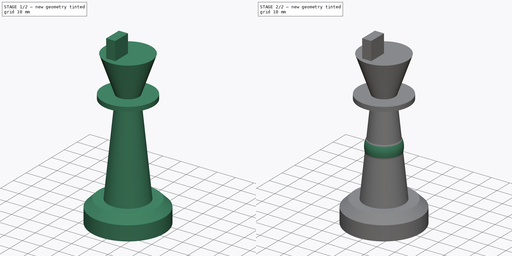
[diagram: build sequence overview — one tinted view per stage of 2, left to right]
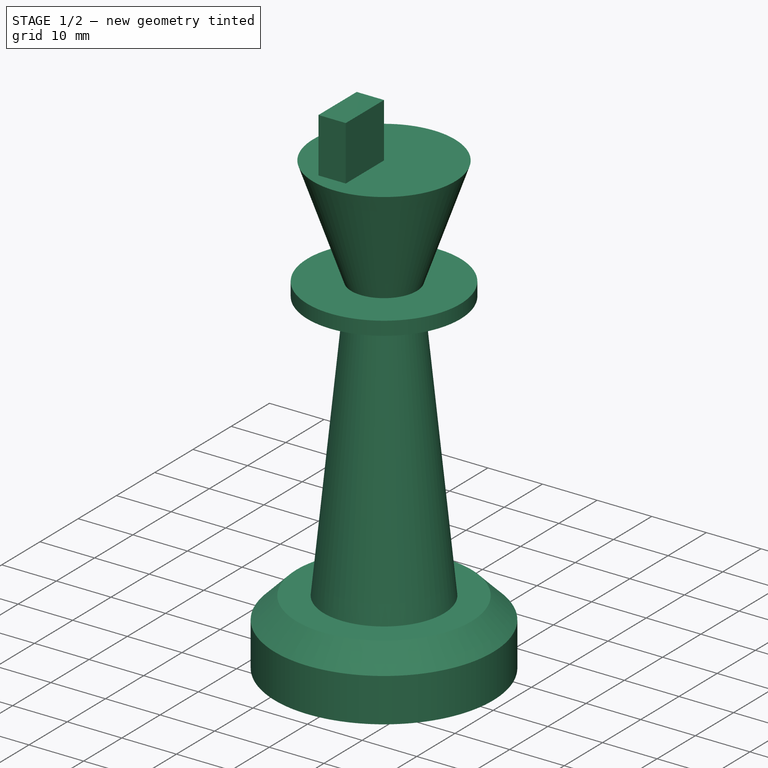
[diagram: stage 1 of 2 — iso view after this stage's code; geometry added in this stage tinted green]
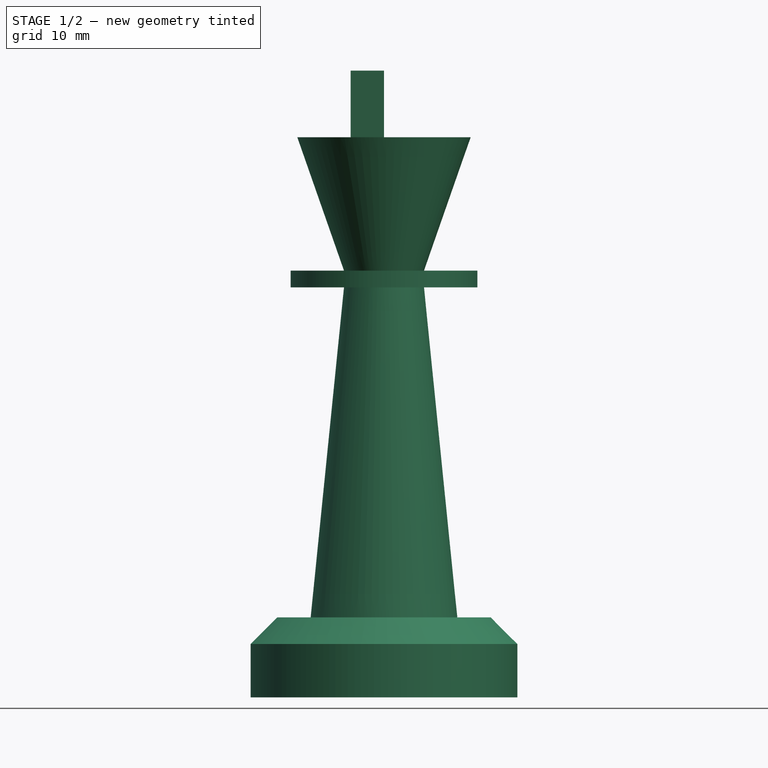
[diagram: stage 1 of 2 — front view after this stage's code; geometry added in this stage tinted green]
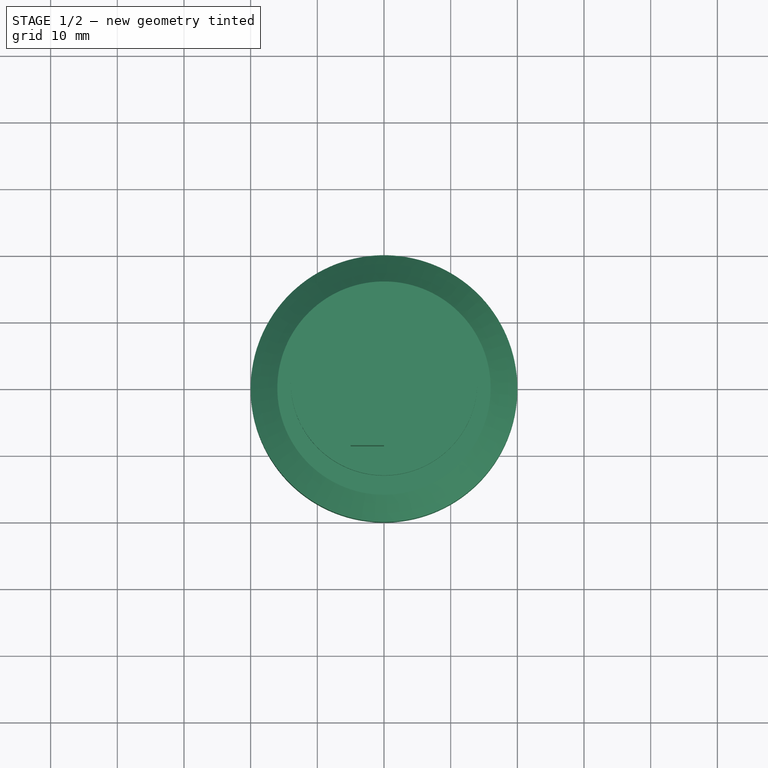
[diagram: stage 1 of 2 — top view after this stage's code; geometry added in this stage tinted green]
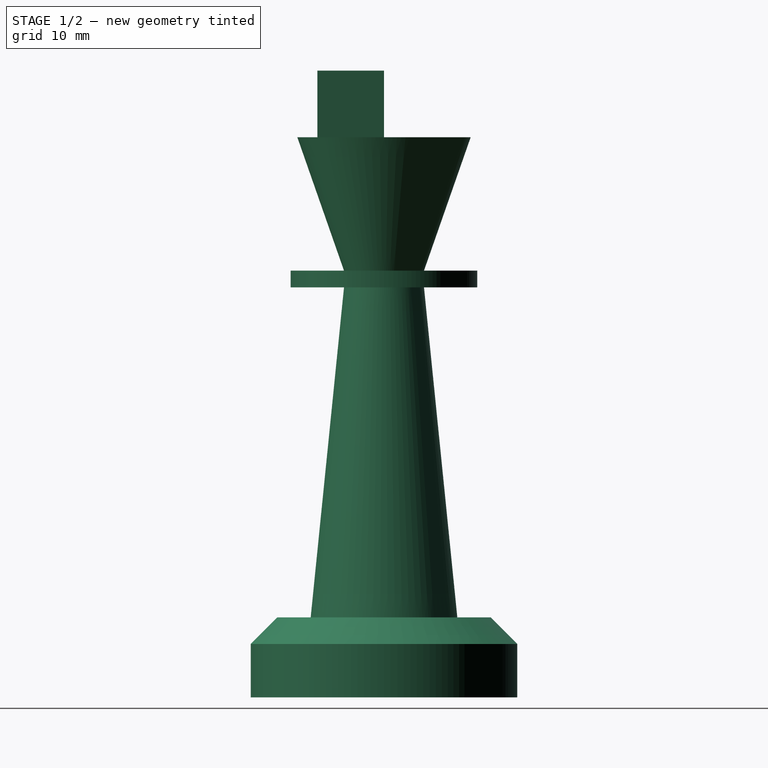
[diagram: stage 1 of 2 — right view after this stage's code; geometry added in this stage tinted green]
FCSTD DOCUMENT  (FreeCAD 0.21R33668 +26 (Git))
Label: pawn
License: All rights reserved
LicenseURL: http://en.wikipedia.org/wiki/All_rights_reserved
objects: Sketcher::SketchObject×10, PartDesign::Revolution×2, PartDesign::Body×2, Part::FeaturePython×1, App::Part×1, App::DocumentObjectGroup×1, PartDesign::Pad×1
note: 19 computed .brp shape members not serialized (recipe doc carries the construction recipe); baked Part::Feature solids carry a one-line shape summary decoded from their .brp

FEATURE [PartDesign::Body] Body
  Group = -> [Sketch,Revolution]
  Origin = -> Origin
  Tip = -> Revolution
FEATURE [App::Part] Part
  Origin = -> Origin001
FEATURE [Sketcher::SketchObject] Sketch002
  FullyConstrained = false
  MapMode = 3
  Placement = pos=(0,0,0) rot=(1,0,0;1.5708rad)
  Support = -> [Part]
  sketch-geometry (10):
    g0: LineSegment StartX=0 StartY=0 StartZ=0 EndX=-15 EndY=0 EndZ=0
    g1: LineSegment StartX=-15 StartY=0 StartZ=0 EndX=-15 EndY=3 EndZ=0
    g2: LineSegment StartX=-15 StartY=3 StartZ=0 EndX=0 EndY=3 EndZ=0
    g3: LineSegment StartX=0 StartY=3 StartZ=0 EndX=0 EndY=0 EndZ=0
    g4: LineSegment StartX=-15 StartY=3 StartZ=0 EndX=0.045315 EndY=3 EndZ=0
    g5: LineSegment StartX=0.045315 StartY=3 StartZ=0 EndX=0.045315 EndY=6.13043 EndZ=0
    g6: LineSegment StartX=0.045315 StartY=6.13043 StartZ=0 EndX=-15 EndY=6.13043 EndZ=0
    g7: LineSegment StartX=-15 StartY=6.13043 StartZ=0 EndX=-15 EndY=3 EndZ=0
    g8: LineSegment StartX=-15 StartY=3 StartZ=0 EndX=-12.7225 EndY=6.13043 EndZ=0
    g9: GeomPoint X=-12.7225 Y=6.13043 Z=0
  constraints (22):
    c: Coincident(g0,g1)
    c: Coincident(g1,g2)
    c: Coincident(g2,g3)
    c: Coincident(g3,g0)
    c: Horizontal(g0)
    c: Horizontal(g2)
    c: Vertical(g1)
    c: Vertical(g3)
    c: Coincident(g0,g-1)
    c: DistanceX(g0,g0) = 15
    c: DistanceY(g1,g1) = 3
    c: Coincident(g4,g5)
    c: Coincident(g5,g6)
    c: Coincident(g6,g7)
    c: Coincident(g7,g4)
    c: Horizontal(g4)
    c: Horizontal(g6)
    c: Vertical(g5)
    c: Vertical(g7)
    c: Coincident(g4,g1)
    c: Coincident(g8,g1)
    c: PointOnObject(g8,g6)
FEATURE [Sketcher::SketchObject] Sketch003
  FullyConstrained = true
  Placement = pos=(0,0,0) rot=(1,0,0;1.5708rad)
  sketch-geometry (11):
    g0: LineSegment StartX=0 StartY=0 StartZ=0 EndX=-20 EndY=0 EndZ=0
    g1: LineSegment StartX=-20 StartY=0 StartZ=0 EndX=-20 EndY=8 EndZ=0
    g2: LineSegment StartX=-20 StartY=8 StartZ=0 EndX=-16 EndY=12 EndZ=0
    g3: LineSegment StartX=-16 StartY=12 StartZ=0 EndX=-11 EndY=12 EndZ=0
    g4: LineSegment StartX=-11 StartY=12 StartZ=0 EndX=-6 EndY=61.5 EndZ=0
    g5: LineSegment StartX=-6 StartY=61.5 StartZ=0 EndX=-14 EndY=61.5 EndZ=0
    g6: LineSegment StartX=-14 StartY=61.5 StartZ=0 EndX=-14 EndY=64 EndZ=0
    g7: LineSegment StartX=-14 StartY=64 StartZ=0 EndX=-6 EndY=64 EndZ=0
    g8: LineSegment StartX=-6 StartY=64 StartZ=0 EndX=-13 EndY=84 EndZ=0
    g9: LineSegment StartX=-13 StartY=84 StartZ=0 EndX=0 EndY=84 EndZ=0
    g10: LineSegment StartX=0 StartY=84 StartZ=0 EndX=0 EndY=0 EndZ=0
  constraints (32):
    c: Coincident(g-1,g0)
    c: PointOnObject(g0,g-1)
    c: Coincident(g0,g1)
    c: Vertical(g1)
    c: Coincident(g1,g2)
    c: Horizontal(g3)
    c: Coincident(g3,g4)
    c: Coincident(g4,g5)
    c: Horizontal(g5)
    c: Coincident(g5,g6)
    c: Vertical(g6)
    c: Coincident(g6,g7)
    c: Horizontal(g7)
    c: Coincident(g7,g8)
    c: Coincident(g8,g9)
    c: PointOnObject(g9,g-2)
    c: Horizontal(g9)
    c: Coincident(g9,g10)
    c: Coincident(g10,g0)
    c: DistanceY(g10,g10) = 84
    c: DistanceX(g0,g0) = 20
    c: DistanceY(g1,g1) = 8
    c: DistanceY(g3) = 12
    c: Coincident(g2,g3)
    c: DistanceX(g2) = -16
    c: DistanceX(g3,g3) = 5
    c: DistanceX(g4) = -6
    c: DistanceX(g5,g5) = 8
    c: Equal(g5,g7)
    c: DistanceY(g6,g6) = 2.5
    c: DistanceY(g8,g8) = 20
    c: DistanceX(g9,g9) = 13
FEATURE [Sketcher::SketchObject] Sketch004
  FullyConstrained = true
  MapMode = 3
  Placement = pos=(0,0,0) rot=(1,0,0;3.14159rad)
  Support = -> [Sketch003]
FEATURE [App::DocumentObjectGroup] Group
  Group = -> [Sketch004]
FEATURE [PartDesign::Revolution] Revolution001
  Angle = 360
  Axis = (0,0,1)
  Base = (0,0,0)
  Placement = pos=(0,0,0) rot=(1,0,0;1.5708rad)
  Profile = -> Sketch003
  ReferenceAxis = -> Sketch003 [V_Axis]
FEATURE [Sketcher::SketchObject] Sketch005
  FullyConstrained = true
  MapMode = 5
  Placement = pos=(0,3.71e-14,84) rot=(0,0,1;3.14159rad)
  Support = -> [Revolution001]
  sketch-geometry (4):
    g0: LineSegment StartX=0 StartY=10 StartZ=0 EndX=5 EndY=10 EndZ=0
    g1: LineSegment StartX=5 StartY=10 StartZ=0 EndX=5 EndY=0 EndZ=0
    g2: LineSegment StartX=5 StartY=0 StartZ=0 EndX=0 EndY=0 EndZ=0
    g3: LineSegment StartX=0 StartY=0 StartZ=0 EndX=0 EndY=10 EndZ=0
  constraints (12):
    c: Coincident(g0,g1)
    c: Coincident(g1,g2)
    c: Coincident(g2,g3)
    c: Coincident(g3,g0)
    c: Horizontal(g0)
    c: Horizontal(g2)
    c: Vertical(g1)
    c: Vertical(g3)
    c: DistanceX(g0,g0) = 5
    c: DistanceY(g3,g3) = 10
    c: DistanceX(g2) = 0
    c: DistanceY(g1) = 0
FEATURE [PartDesign::Pad] Pad
  BaseFeature = -> Revolution001
  Direction = (0,4e-16,1)
  Length = 10
  Length2 = 10
  Placement = pos=(0,0,0) rot=(1,0,0;1.5708rad)
  Profile = -> Sketch005
  ReferenceAxis = -> Sketch005 [N_Axis]
  Type = 0
FEATURE [PartDesign::Body] Body001
  Group = -> [Sketch003,Revolution001,Sketch005,Pad]
  Origin = -> Origin002
  Tip = -> Pad
FEATURE [Sketcher::SketchObject] Sketch010
  FullyConstrained = false
  MapMode = 5
  Placement = pos=(0,4.65e-14,84) rot=(0,0,1;3.14159rad)
  Support = -> [Pad]
  sketch-geometry (4):
    g0: LineSegment StartX=3.43077e+07 StartY=-0.781711 StartZ=0 EndX=1.22961e+07 EndY=-0.781711 EndZ=0
    g1: LineSegment StartX=1.22961e+07 StartY=-0.781711 StartZ=0 EndX=1.22961e+07 EndY=-5.78171 EndZ=0
    g2: LineSegment StartX=1.22961e+07 StartY=-5.78171 StartZ=0 EndX=3.43077e+07 EndY=-5.78171 EndZ=0
    g3: LineSegment StartX=3.43077e+07 StartY=-5.78171 StartZ=0 EndX=3.43077e+07 EndY=-0.781711 EndZ=0
  constraints (9):
    c: Coincident(g0,g1)
    c: Coincident(g1,g2)
    c: Coincident(g2,g3)
    c: Coincident(g3,g0)
    c: Horizontal(g0)
    c: Horizontal(g2)
    c: Vertical(g1)
    c: Vertical(g3)
    c: DistanceY(g3,g3) = 5
FEATURE [Sketcher::SketchObject] Sketch011
  FullyConstrained = true
  MapMode = 5
  Placement = pos=(-5,0,0) rot=(0.707107,0,-0.707107;3.14159rad)
  Support = -> [Pad]
FEATURE [Sketcher::SketchObject] Sketch012  label="crown_sections"
  FullyConstrained = false
  MapMode = 5
  Placement = pos=(-5,0,0) rot=(0.707107,0,-0.707107;3.14159rad)
  Support = -> [Pad]
  sketch-geometry (16):
    g0: LineSegment StartX=-86 StartY=-5.78008 StartZ=0 EndX=-88 EndY=-5.78008 EndZ=0
    g1: LineSegment StartX=-88 StartY=-5.78008 StartZ=0 EndX=-88 EndY=-2.78008 EndZ=0
    g2: LineSegment StartX=-88 StartY=-2.78008 StartZ=0 EndX=-86 EndY=-2.78008 EndZ=0
    g3: LineSegment StartX=-86 StartY=-2.78008 StartZ=0 EndX=-86 EndY=-5.78008 EndZ=0
    g4: LineSegment StartX=-93.7678 StartY=-2.76527 StartZ=0 EndX=-91 EndY=-2.76527 EndZ=0
    g5: LineSegment StartX=-91 StartY=-2.76527 StartZ=0 EndX=-91 EndY=-5.76527 EndZ=0
    g6: LineSegment StartX=-91 StartY=-5.76527 StartZ=0 EndX=-93.7678 EndY=-5.76527 EndZ=0
    g7: LineSegment StartX=-93.7678 StartY=-5.76527 StartZ=0 EndX=-93.7678 EndY=-2.76527 EndZ=0
    g8: LineSegment StartX=-86 StartY=5.78008 StartZ=0 EndX=-88 EndY=5.78008 EndZ=0
    g9: LineSegment StartX=-88 StartY=5.78008 StartZ=0 EndX=-88 EndY=2.78008 EndZ=0
    g10: LineSegment StartX=-88 StartY=2.78008 StartZ=0 EndX=-86 EndY=2.78008 EndZ=0
    g11: LineSegment StartX=-86 StartY=2.78008 StartZ=0 EndX=-86 EndY=5.78008 EndZ=0
    g12: LineSegment StartX=-93.7678 StartY=2.76527 StartZ=0 EndX=-91 EndY=2.76527 EndZ=0
    g13: LineSegment StartX=-91 StartY=2.76527 StartZ=0 EndX=-91 EndY=5.76527 EndZ=0
    g14: LineSegment StartX=-91 StartY=5.76527 StartZ=0 EndX=-93.7678 EndY=5.76527 EndZ=0
    g15: LineSegment StartX=-93.7678 StartY=5.76527 StartZ=0 EndX=-93.7678 EndY=2.76527 EndZ=0
  constraints (37):
    c: Coincident(g0,g1)
    c: Coincident(g1,g2)
    c: Coincident(g2,g3)
    c: Coincident(g3,g0)
    c: Horizontal(g0)
    c: Horizontal(g2)
    c: Vertical(g1)
    c: Vertical(g3)
    c: DistanceX(g2,g2) = 2
    c: DistanceY(g1,g1) = 3
    c: Coincident(g4,g5)
    c: Coincident(g5,g6)
    c: Coincident(g6,g7)
    c: Coincident(g7,g4)
    c: Horizontal(g4)
    c: Horizontal(g6)
    c: Vertical(g5)
    c: Vertical(g7)
    c: DistanceY(g7,g7) = 3
    c: DistanceX(g5) = -91
    c: DistanceX(g0) = -86
    c: Coincident(g8,g9)
    c: Coincident(g9,g10)
    c: Coincident(g10,g11)
    c: Coincident(g11,g8)
    c: Horizontal(g8)
    c: Horizontal(g10)
    c: Vertical(g9)
    c: Vertical(g11)
    c: Coincident(g12,g13)
    c: Coincident(g13,g14)
    c: Coincident(g14,g15)
    c: Coincident(g15,g12)
    c: Horizontal(g12)
    c: Horizontal(g14)
    c: Vertical(g13)
    c: Vertical(g15)
FEATURE [Sketcher::SketchObject] Sketch013
  FullyConstrained = true
  MapMode = 5
  Placement = pos=(-5,0,0) rot=(0.707107,0,-0.707107;3.14159rad)
  Support = -> [Pad]
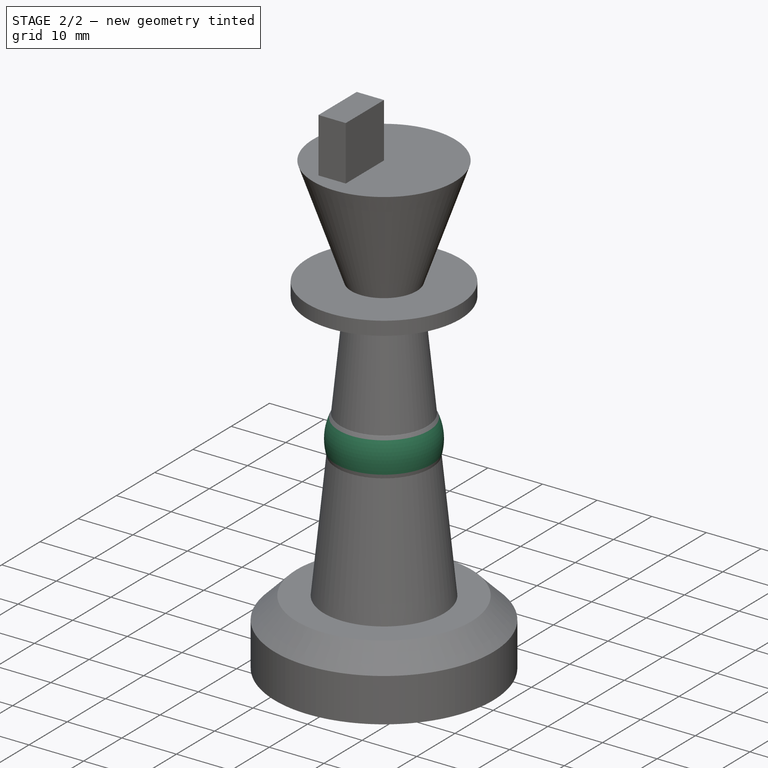
[diagram: stage 2 of 2 — iso view after this stage's code; geometry added in this stage tinted green]
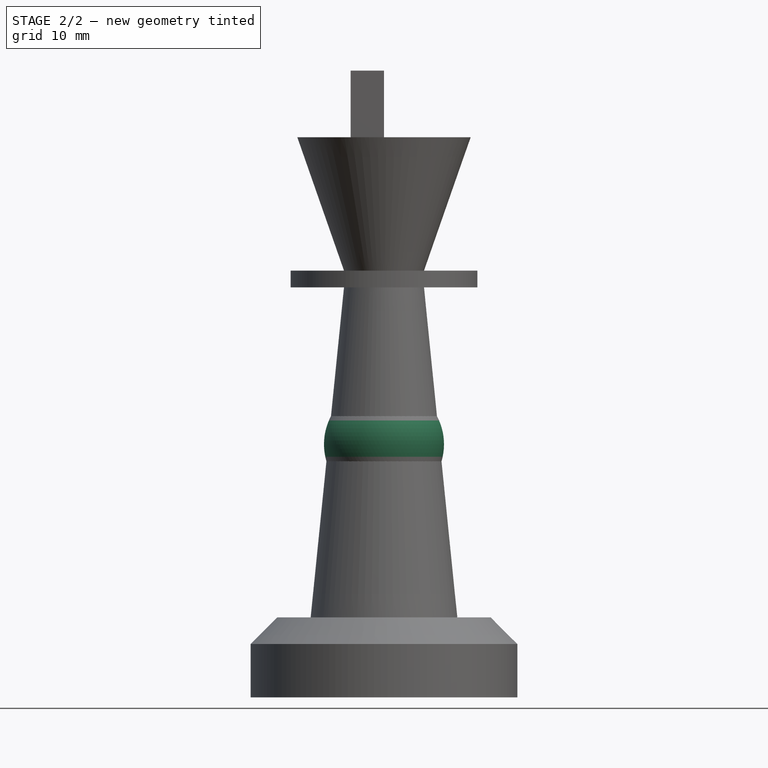
[diagram: stage 2 of 2 — front view after this stage's code; geometry added in this stage tinted green]
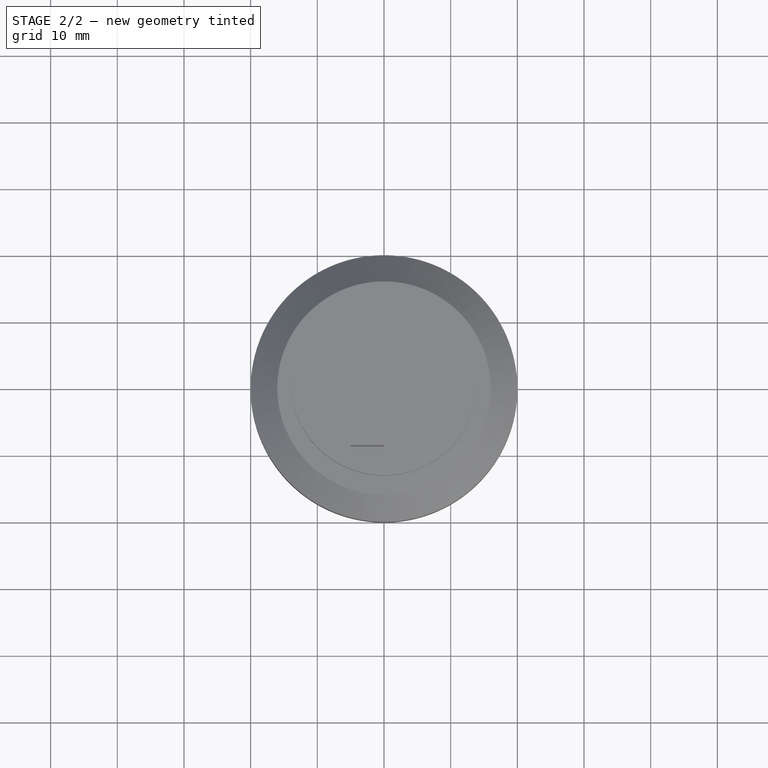
[diagram: stage 2 of 2 — top view after this stage's code; geometry added in this stage tinted green]
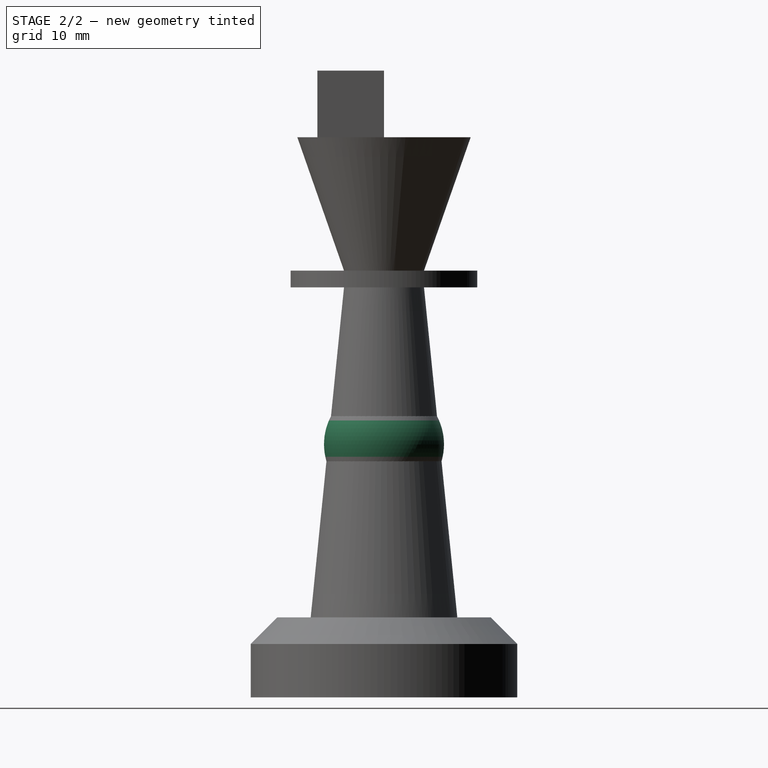
[diagram: stage 2 of 2 — right view after this stage's code; geometry added in this stage tinted green]
FEATURE [Sketcher::SketchObject] Sketch001
  FullyConstrained = true
  Placement = pos=(0,0,0) rot=(0.57735,0.57735,0.57735;2.0944rad)
FEATURE [Sketcher::SketchObject] Sketch
  FullyConstrained = false
  MapMode = 5
  Placement = pos=(0,0,0) rot=(1,0,0;1.5708rad)
  Support = -> [XZ_Plane]
  sketch-geometry (15):
    g0: LineSegment StartX=0 StartY=0 StartZ=0 EndX=-12 EndY=0 EndZ=0
    g1: LineSegment StartX=-12 StartY=0 StartZ=0 EndX=-12 EndY=3 EndZ=0
    g2: LineSegment StartX=-12 StartY=3 StartZ=0 EndX=-10.4501 EndY=5 EndZ=0
    g3: ArcOfCircle CenterX=-8 CenterY=8.16177 CenterZ=0 NormalX=0 NormalY=0 NormalZ=1 AngleXU=0 Radius=4 StartAngle=2.01331 EndAngle=4.05312
    g4: LineSegment StartX=-9.71286 StartY=11.7765 StartZ=0 EndX=-9.71286 EndY=12.7765 EndZ=0
    g5: ArcOfCircle CenterX=-11.4055 CenterY=21.6664 CenterZ=0 NormalX=0 NormalY=0 NormalZ=1 AngleXU=0 Radius=8 StartAngle=5.1657 EndAngle=7.11209
    g6: ArcOfCircle CenterX=-8.47672 CenterY=13.2727 CenterZ=0 NormalX=0 NormalY=0 NormalZ=1 AngleXU=0 Radius=1.33203 StartAngle=1.12464 EndAngle=3.52335
    g7: LineSegment StartX=0 StartY=40 StartZ=0 EndX=0 EndY=0 EndZ=0
    g8: GeomPoint X=0 Y=27.3568 Z=0
    g9: GeomPoint X=0 Y=28.8076 Z=0
    g10: ArcOfCircle CenterX=-4.37567 CenterY=28.7308 CenterZ=0 NormalX=0 NormalY=0 NormalZ=1 AngleXU=0 Radius=2 StartAngle=1.96663 EndAngle=3.76453
    g11: ArcOfCircle CenterX=0 CenterY=37.9592 CenterZ=0 NormalX=0 NormalY=0 NormalZ=1 AngleXU=0 Radius=9 StartAngle=1.5708 EndAngle=4.10361
    g12: LineSegment StartX=0 StartY=40 StartZ=0 EndX=6e-16 EndY=46.9592 EndZ=0
    g13: GeomPoint X=6e-16 Y=46.9592 Z=0
    g14: GeomPoint X=0 Y=46.9592 Z=0
  constraints (31):
    c: Coincident(g-1,g0)
    c: PointOnObject(g0,g-1)
    c: Coincident(g0,g1)
    c: Vertical(g1)
    c: Coincident(g1,g2)
    c: Perpendicular(g2,g3) = 4.71239
    c: Coincident(g3,g4)
    c: Vertical(g4)
    c: DistanceX(g0,g0) = 12
    c: DistanceY(g1,g1) = 3
    c: DistanceY(g1,g2) = 2
    c: Radius(g3) = 4
    c: DistanceX(g3,g0) = 8
    c: DistanceY(g4,g4) = 1
    c: Radius(g5) = 8
    c: Coincident(g7,g0)
    c: Vertical(g7)
    c: PointOnObject(g8,g7)
    c: PointOnObject(g9,g7)
    c: Coincident(g5,g6)
    c: DistanceX(g5,g8) = 6
    c: Coincident(g10,g5)
    c: Radius(g10) = 2
    c: PointOnObject(g11,g7)
    c: Coincident(g11,g10)
    c: PointOnObject(g11,g-2)
    c: Radius(g11) = 9
    c: Coincident(g12,g7)
    c: Coincident(g12,g11)
    c: Coincident(g13,g11)
    c: Coincident(g6,g4)
FEATURE [Part::FeaturePython] Connect  # WARN: FeaturePython — macro-defined, semantics opaque (R4)
  Objects = -> [Sketch]
  Tolerance = 0
FEATURE [PartDesign::Revolution] Revolution
  Angle = 360
  Axis = (0,-2e-16,1)
  Base = (0,0,0)
  Placement = pos=(0,0,0) rot=(1,0,0;1.5708rad)
  Profile = -> Sketch
  ReferenceAxis = -> Sketch [V_Axis]
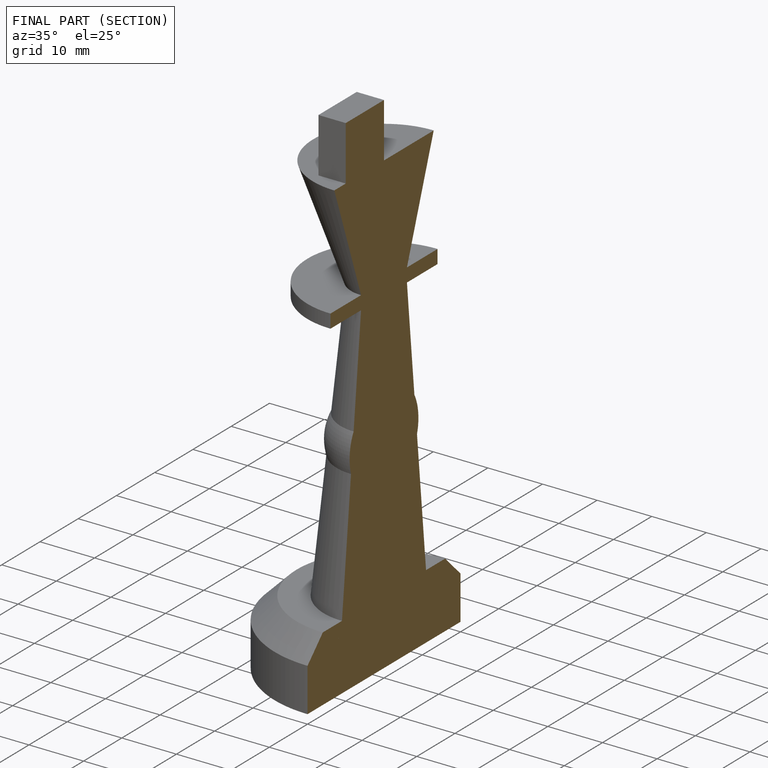
[diagram: finished part — half-section view (interior)]
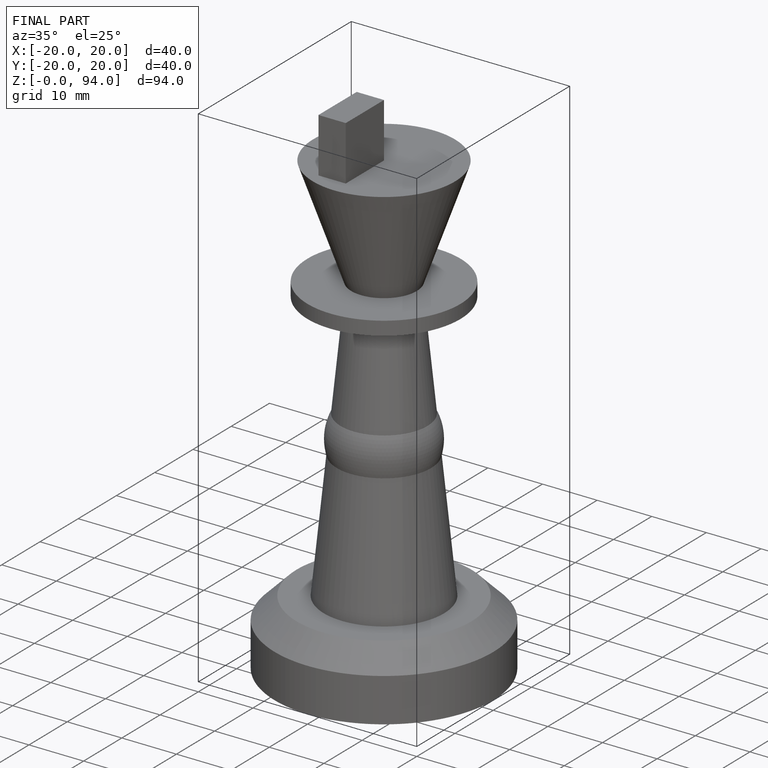
[diagram: finished part — iso view with bounding-box wireframe]
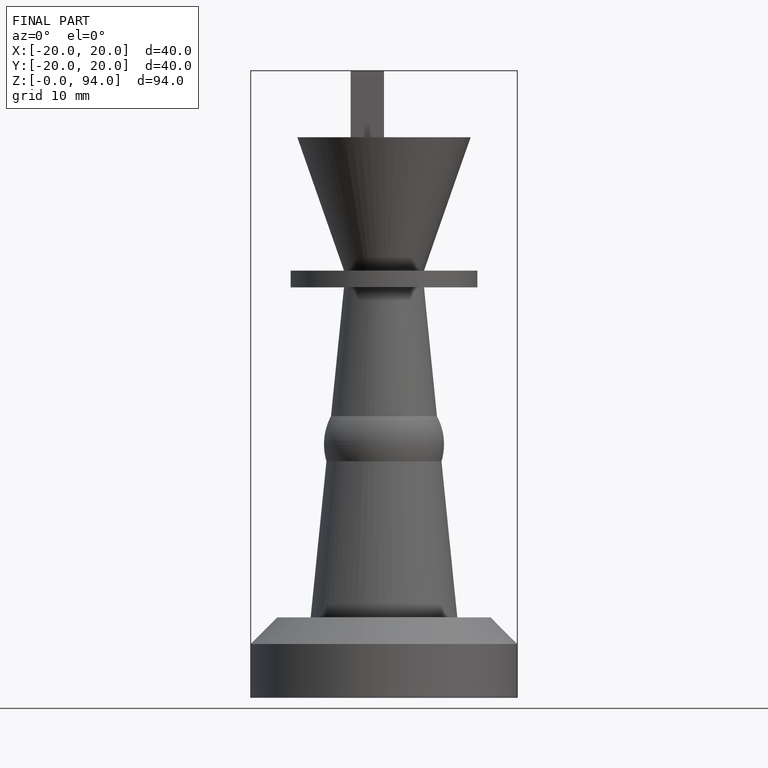
[diagram: finished part — front view with bounding-box wireframe]
